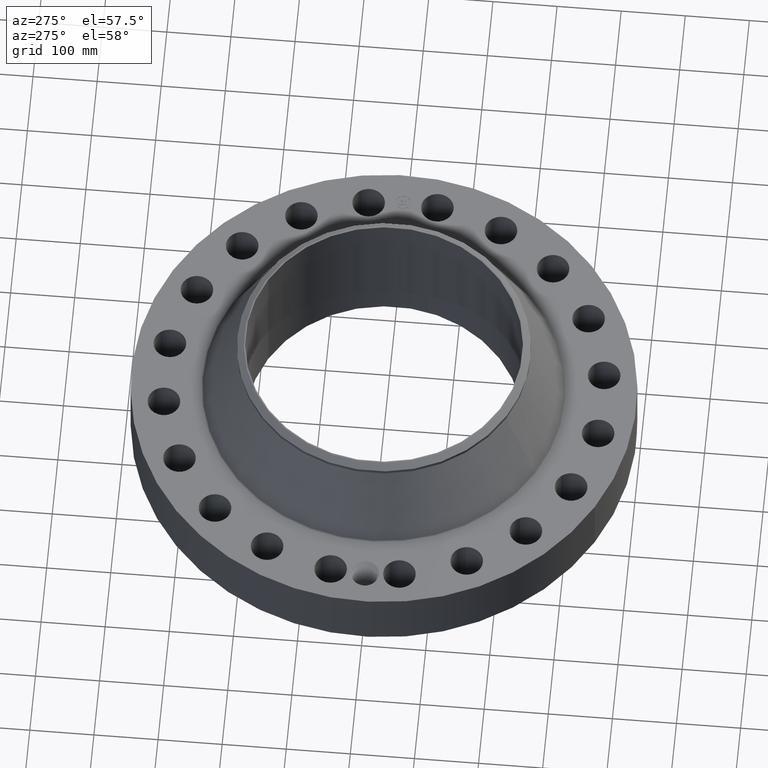
[diagram: clean part render]
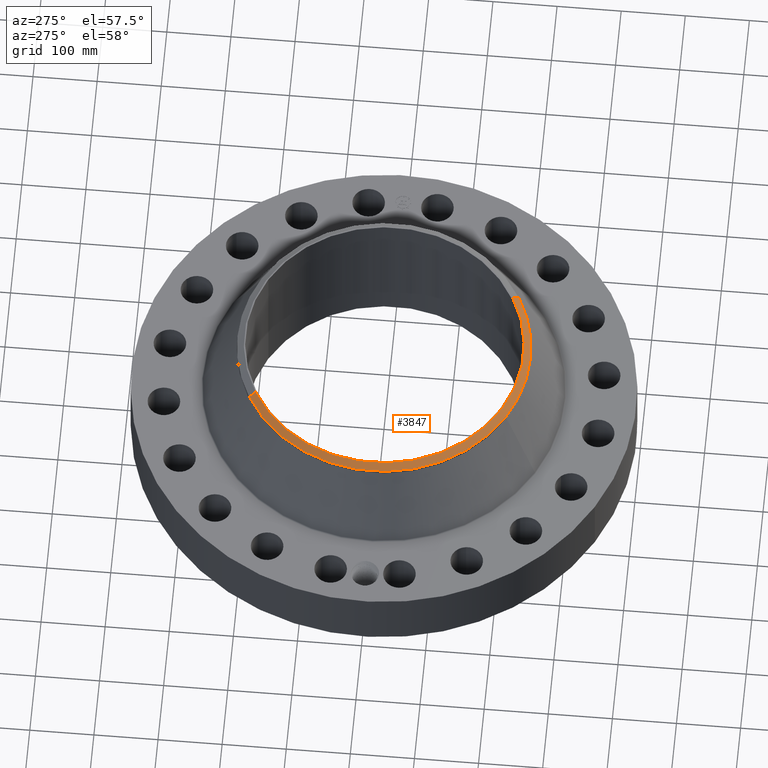
[diagram: same view with one face highlighted and labeled with its STEP entity id]
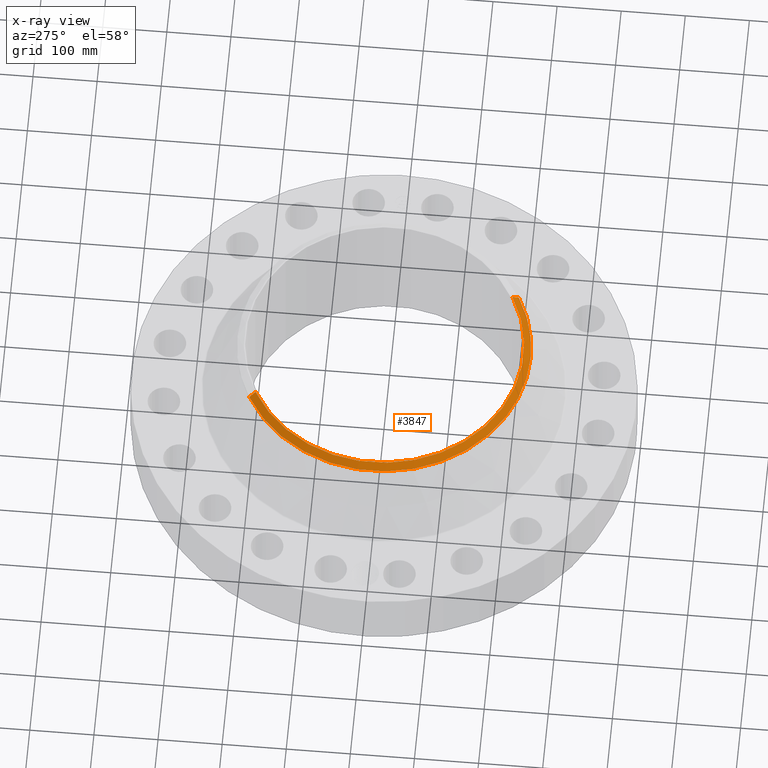
[diagram: x-ray of the same camera — body ghosted, the highlighted face saturated]
A machine part, auxiliary view. The second image highlights one B-rep face of the part: STEP entity #3847.
The next image is the same camera in x-ray: the body ghosted, the highlighted face saturated — about 0% of this face is hidden behind the body in this view.
In plain terms, the highlighted conical surface has half-angle 52.5 deg.
Its self-contained STEP definition (entity closure, byte-faithful):
#3001=AXIS2_PLACEMENT_3D('Circle Axis2P3D',#2999,#3000,$) ;
#3812=AXIS2_PLACEMENT_3D('Cone Axis2P3D',#3809,#3810,#3811) ;
#3830=AXIS2_PLACEMENT_3D('Circle Axis2P3D',#3828,#3829,$) ;
#3837=AXIS2_PLACEMENT_3D('Circle Axis2P3D',#3835,#3836,$) ;
#2994=CARTESIAN_POINT('Vertex',(4.11286712056,-7.52855276522,9.25000000004)) ;
#2996=CARTESIAN_POINT('Vertex',(-4.11286712056,7.52855276522,9.25000000004)) ;
#2999=CARTESIAN_POINT('Axis2P3D Location',(0.,0.,9.25000000004)) ;
#3809=CARTESIAN_POINT('Axis2P3D Location',(0.,0.,9.25000000004)) ;
#3814=CARTESIAN_POINT('Line Origine',(4.21384848401,-7.71339791113,9.08837797698)) ;
#3818=CARTESIAN_POINT('Vertex',(4.31482984746,-7.89824305704,8.92675595392)) ;
#3821=CARTESIAN_POINT('Line Origine',(-4.21384848401,7.71339791113,9.08837797698)) ;
#3825=CARTESIAN_POINT('Vertex',(-4.31482984746,7.89824305704,8.92675595392)) ;
#3828=CARTESIAN_POINT('Axis2P3D Location',(0.,0.,8.92675595392)) ;
#3832=CARTESIAN_POINT('Vertex',(-4.31482984746,-7.89824305704,8.92675595392)) ;
#3835=CARTESIAN_POINT('Axis2P3D Location',(0.,0.,8.92675595392)) ;
#3000=DIRECTION('Axis2P3D Direction',(0.,0.,-0.0393700787402)) ;
#3810=DIRECTION('Axis2P3D Direction',(-0.,-0.,-0.0393700787402)) ;
#3811=DIRECTION('Axis2P3D XDirection',(-0.0188750212049,0.0345504945626,0.)) ;
#3815=DIRECTION('Vector Direction',(0.014974561121,-0.02741075027,-0.023966985394)) ;
#3822=DIRECTION('Vector Direction',(-0.014974561121,0.02741075027,-0.023966985394)) ;
#3829=DIRECTION('Axis2P3D Direction',(0.,0.,-0.0393700787402)) ;
#3836=DIRECTION('Axis2P3D Direction',(0.,0.,-0.0393700787402)) ;
#3816=VECTOR('Line Direction',#3815,0.0393700787402) ;
#3823=VECTOR('Line Direction',#3822,0.0393700787402) ;
#3841=ORIENTED_EDGE('',*,*,#3820,.F.) ;
#3842=ORIENTED_EDGE('',*,*,#3003,.F.) ;
#3843=ORIENTED_EDGE('',*,*,#3827,.T.) ;
#3844=ORIENTED_EDGE('',*,*,#3834,.T.) ;
#3845=ORIENTED_EDGE('',*,*,#3839,.F.) ;
#3847=ADVANCED_FACE('PartBody',(#3846),#3813,.T.) ;
#3002=CIRCLE('generated circle',#3001,8.57874015751) ;
#3831=CIRCLE('generated circle',#3830,9.00000000004) ;
#3838=CIRCLE('generated circle',#3837,9.00000000004) ;
#3813=CONICAL_SURFACE('Cone',#3812,8.57874015751,0.916297857297) ;
#3003=EDGE_CURVE('',#2997,#2995,#3002,.F.) ;
#3820=EDGE_CURVE('',#2995,#3819,#3817,.T.) ;
#3827=EDGE_CURVE('',#2997,#3826,#3824,.T.) ;
#3834=EDGE_CURVE('',#3826,#3833,#3831,.F.) ;
#3839=EDGE_CURVE('',#3819,#3833,#3838,.T.) ;
#3840=EDGE_LOOP('',(#3841,#3842,#3843,#3844,#3845)) ;
#3846=FACE_OUTER_BOUND('',#3840,.T.) ;
#3817=LINE('Line',#3814,#3816) ;
#3824=LINE('Line',#3821,#3823) ;
#2995=VERTEX_POINT('',#2994) ;
#2997=VERTEX_POINT('',#2996) ;
#3819=VERTEX_POINT('',#3818) ;
#3826=VERTEX_POINT('',#3825) ;
#3833=VERTEX_POINT('',#3832) ;